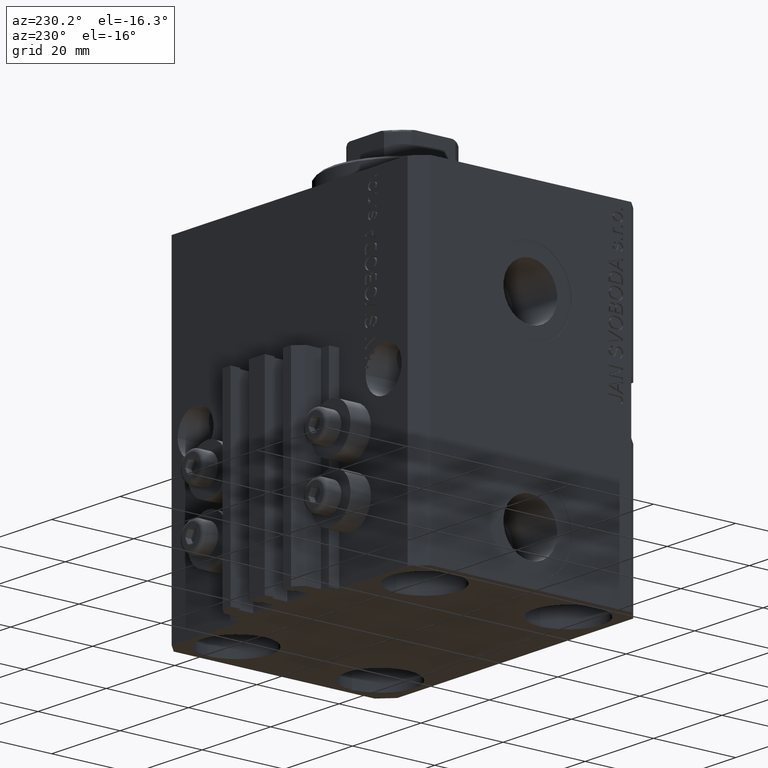
[diagram: clean part render]
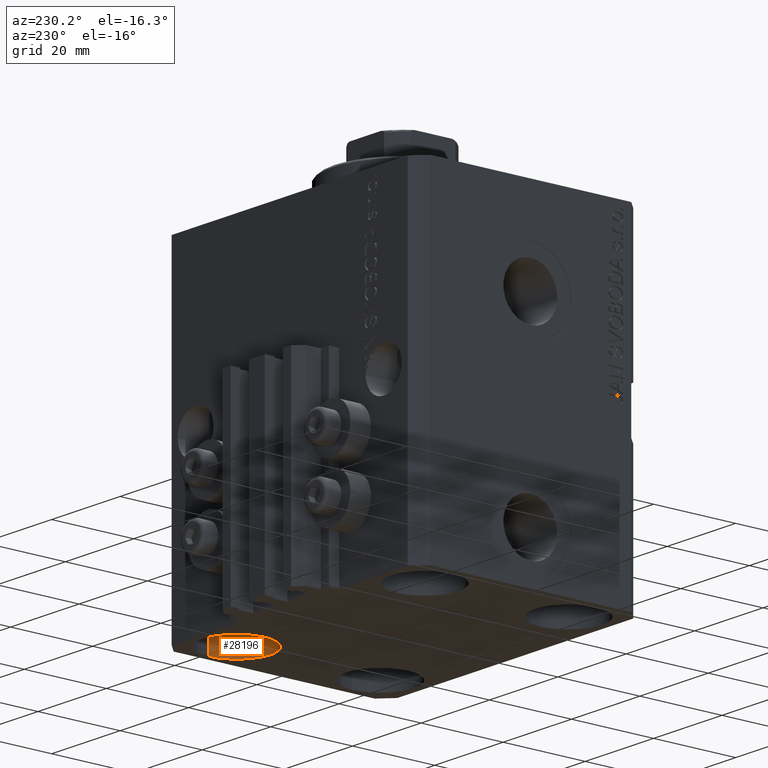
[diagram: same view with one face highlighted and labeled with its STEP entity id]
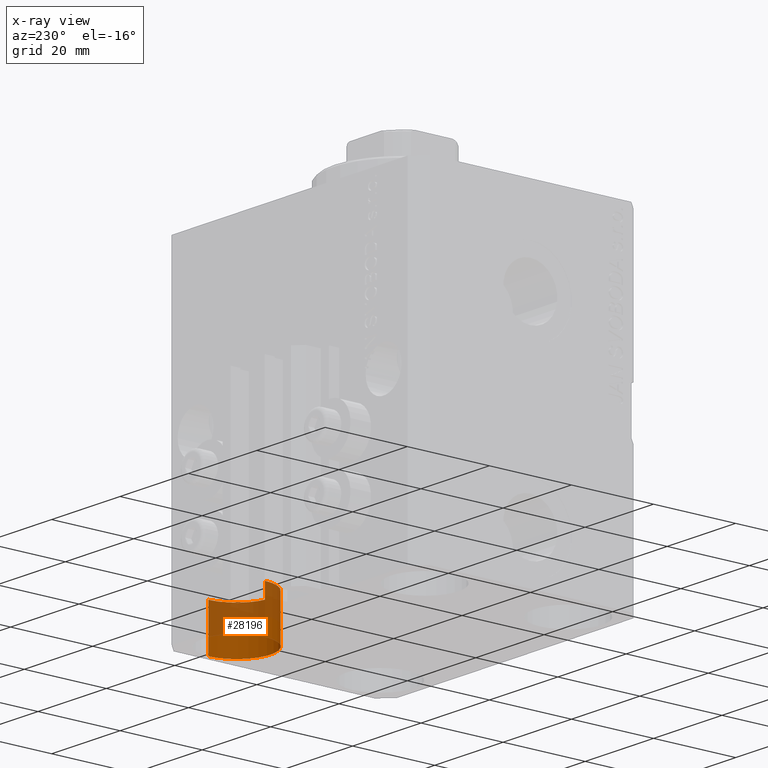
[diagram: x-ray of the same camera — body ghosted, the highlighted face saturated]
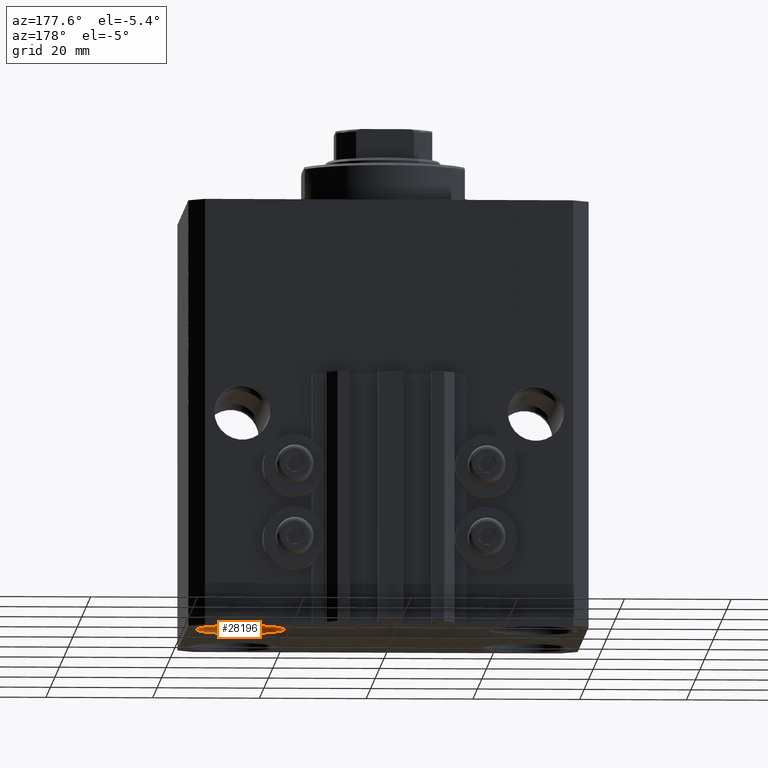
[diagram: same view with one face highlighted and labeled with its STEP entity id]
A machine part, auxiliary view. The second image highlights one B-rep face of the part: STEP entity #28196.
The next image is the same camera in x-ray: the body ghosted, the highlighted face saturated — about 57% of this face is hidden behind the body in this view.
A second angle (auxiliary view) of the same face is appended — the face is thin or edge-on in the first view.
In plain terms, the highlighted cylindrical surface (partial cylindrical patch) has radius 8.25 mm, axis along (-0, -0, -1).
Its self-contained STEP definition (entity closure, byte-faithful):
#400 = AXIS2_PLACEMENT_3D ( 'NONE', #4075, #22076, #7872 ) ;
#434 = CIRCLE ( 'NONE', #45790, 8.249999999999992895 ) ;
#1306 = CARTESIAN_POINT ( 'NONE',  ( 35.74999999999999289, 17.50000000000001066, -69.00000000000000000 ) ) ;
#4075 = CARTESIAN_POINT ( 'NONE',  ( 27.49999999999999645, 17.50000000000001066, -69.00000000000000000 ) ) ;
#4144 = EDGE_CURVE ( 'NONE', #28803, #23122, #6529, .T. ) ;
#4152 = FACE_OUTER_BOUND ( 'NONE', #18134, .T. ) ;
#4371 = ORIENTED_EDGE ( 'NONE', *, *, #42449, .T. ) ;
#6529 = LINE ( 'NONE', #10305, #35012 ) ;
#6583 = VECTOR ( 'NONE', #30198, 1000.000000000000000 ) ;
#7872 = DIRECTION ( 'NONE',  ( 1.000000000000000000, 0.000000000000000000, 0.000000000000000000 ) ) ;
#9325 = ORIENTED_EDGE ( 'NONE', *, *, #4144, .F. ) ;
#9583 = LINE ( 'NONE', #1306, #6583 ) ;
#10305 = CARTESIAN_POINT ( 'NONE',  ( 19.25000000000000000, 17.50000000000001066, -69.00000000000000000 ) ) ;
#11795 = CARTESIAN_POINT ( 'NONE',  ( 19.25000000000000000, 17.50000000000001066, -69.00000000000000000 ) ) ;
#12365 = VERTEX_POINT ( 'NONE', #32583 ) ;
#14556 = AXIS2_PLACEMENT_3D ( 'NONE', #39667, #46770, #39905 ) ;
#15182 = CARTESIAN_POINT ( 'NONE',  ( 19.25000000000000000, 17.50000000000001066, -80.00000000000000000 ) ) ;
#17475 = CARTESIAN_POINT ( 'NONE',  ( 35.74999999999999289, 17.50000000000001066, -69.00000000000000000 ) ) ;
#17512 = ORIENTED_EDGE ( 'NONE', *, *, #34892, .F. ) ;
#17676 = DIRECTION ( 'NONE',  ( -0.000000000000000000, -0.000000000000000000, 1.000000000000000000 ) ) ;
#18134 = EDGE_LOOP ( 'NONE', ( #28249, #4371, #17512, #9325 ) ) ;
#22076 = DIRECTION ( 'NONE',  ( -0.000000000000000000, -0.000000000000000000, 1.000000000000000000 ) ) ;
#23122 = VERTEX_POINT ( 'NONE', #15182 ) ;
#26904 = VERTEX_POINT ( 'NONE', #17475 ) ;
#28099 = DIRECTION ( 'NONE',  ( 1.000000000000000000, 0.000000000000000000, 0.000000000000000000 ) ) ;
#28196 = ADVANCED_FACE ( 'NONE', ( #4152 ), #32801, .F. ) ;
#28249 = ORIENTED_EDGE ( 'NONE', *, *, #38569, .T. ) ;
#28803 = VERTEX_POINT ( 'NONE', #11795 ) ;
#30198 = DIRECTION ( 'NONE',  ( -0.000000000000000000, -0.000000000000000000, -1.000000000000000000 ) ) ;
#30653 = CIRCLE ( 'NONE', #400, 8.249999999999992895 ) ;
#32355 = CARTESIAN_POINT ( 'NONE',  ( 27.49999999999999645, 17.50000000000001066, -80.00000000000000000 ) ) ;
#32583 = CARTESIAN_POINT ( 'NONE',  ( 35.74999999999999289, 17.50000000000001066, -80.00000000000000000 ) ) ;
#32801 = CYLINDRICAL_SURFACE ( 'NONE', #14556, 8.249999999999996447 ) ;
#34892 = EDGE_CURVE ( 'NONE', #23122, #12365, #434, .T. ) ;
#35012 = VECTOR ( 'NONE', #36116, 1000.000000000000000 ) ;
#36116 = DIRECTION ( 'NONE',  ( -0.000000000000000000, -0.000000000000000000, -1.000000000000000000 ) ) ;
#38569 = EDGE_CURVE ( 'NONE', #28803, #26904, #30653, .T. ) ;
#39667 = CARTESIAN_POINT ( 'NONE',  ( 27.49999999999999645, 17.50000000000001066, -69.00000000000000000 ) ) ;
#39905 = DIRECTION ( 'NONE',  ( -1.000000000000000000, 0.000000000000000000, 0.000000000000000000 ) ) ;
#42449 = EDGE_CURVE ( 'NONE', #26904, #12365, #9583, .T. ) ;
#45790 = AXIS2_PLACEMENT_3D ( 'NONE', #32355, #17676, #28099 ) ;
#46770 = DIRECTION ( 'NONE',  ( -0.000000000000000000, -0.000000000000000000, -1.000000000000000000 ) ) ;